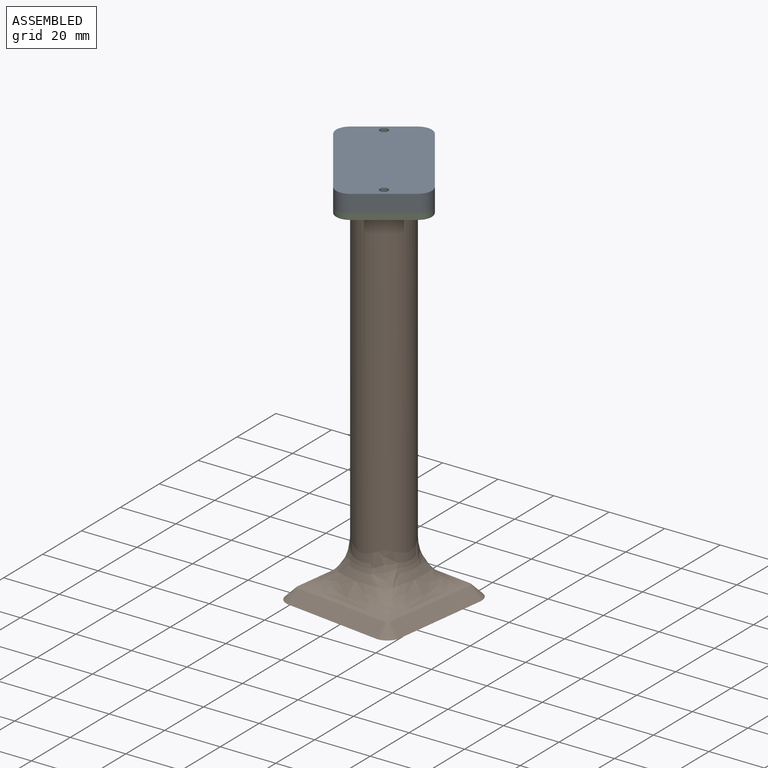
[diagram: assembled view]
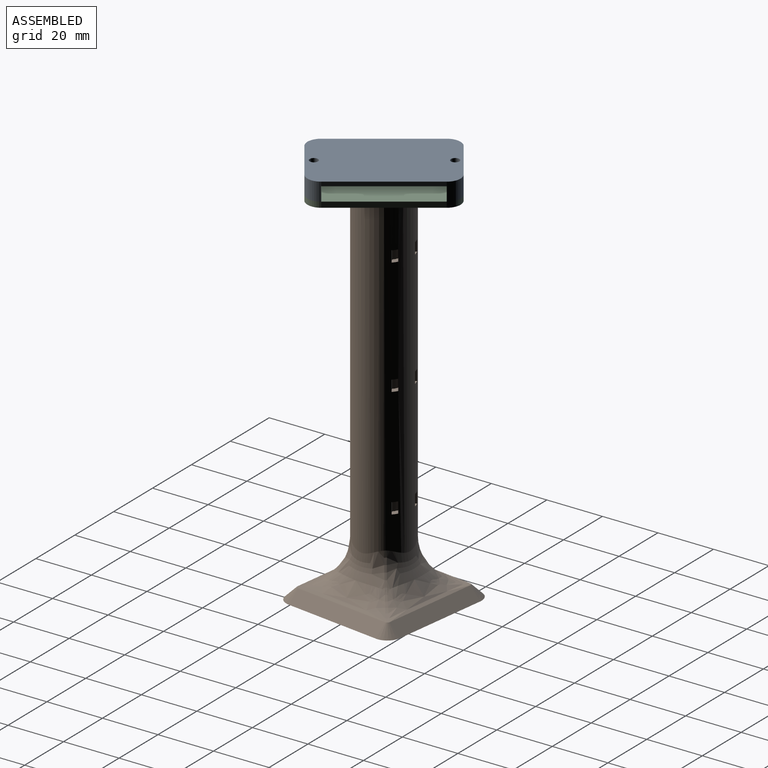
[diagram: assembled view, second angle]
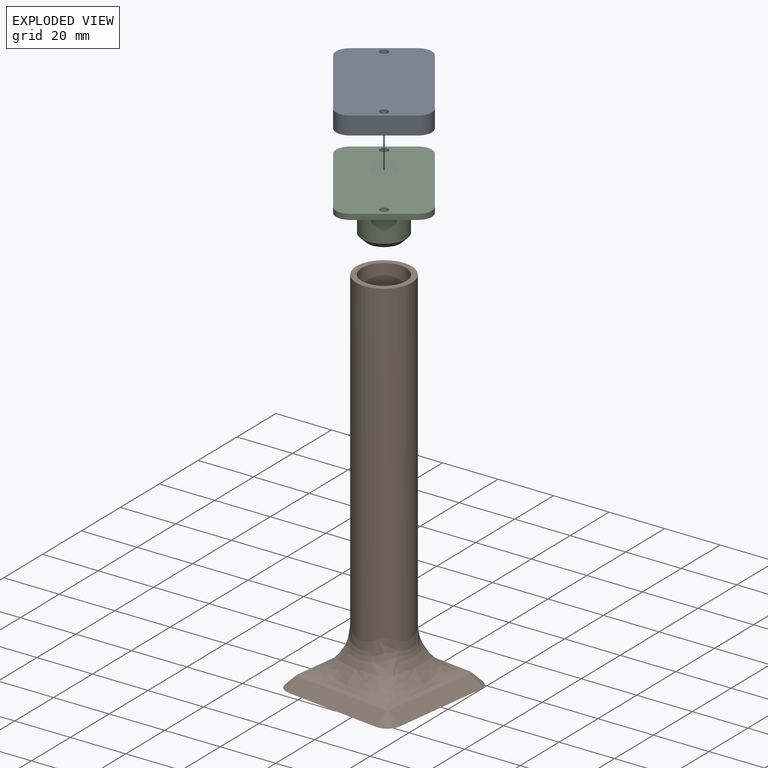
[diagram: exploded view]
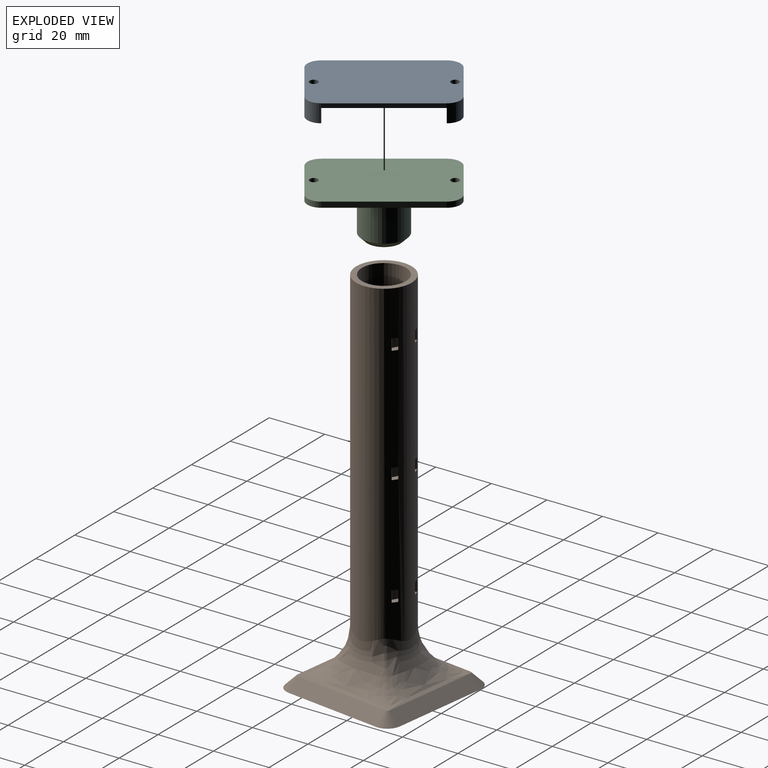
[diagram: exploded view, second angle]
ASSEMBLY  parts=3 mates=2
PART A: 16 faces, bbox 47x30x6.5 mm
  f0: plane 47x30mm, normal (0,0,1), area 1374.4mm2, adj f3,f4,f5,f7,f8,f9,f10,f11
  f1: plane 37x30mm, normal (0,0,-1), area 1110mm2, adj f2,f7,f11,f12
  f2: plane 30x5mm, normal (1,0,0), area 150mm2, adj f1,f3,f5,f6
  f3: cylinder r=5mm len=6.5mm, axis (0,0,-1), area 51.1mm2, adj f0,f2,f4,f6,f11
  f4: plane 20x6.5mm, normal (-1,0,0), area 130mm2, adj f0,f3,f5,f6
  f5: cylinder r=5mm len=6.5mm, axis (0,0,-1), area 51.1mm2, adj f0,f2,f4,f6,f7
  f6: plane 30x5mm, normal (0,0,-1), area 132.2mm2, adj f2,f3,f4,f5,f15
  f7: plane 37x1.5mm, normal (0,-1,0), area 55.5mm2, adj f0,f1,f5,f8
  f8: cylinder r=5mm len=6.5mm, axis (0,0,-1), area 51.1mm2, adj f0,f7,f9,f12,f13
  f9: plane 20x6.5mm, normal (1,0,0), area 130mm2, adj f0,f8,f10,f13
  f10: cylinder r=5mm len=6.5mm, axis (0,0,-1), area 51.1mm2, adj f0,f9,f11,f12,f13
  f11: plane 37x1.5mm, normal (0,1,0), area 55.5mm2, adj f0,f1,f3,f10
  f12: plane 30x5mm, normal (-1,0,0), area 150mm2, adj f1,f8,f10,f13
  f13: plane 30x5mm, normal (0,0,-1), area 132.2mm2, adj f8,f9,f10,f12,f14
  f14: cylinder r=1.5mm len=6.5mm, axis (0,0,1), area 61.3mm2, adj f0,f13
  f15: cylinder r=1.5mm len=6.5mm, axis (0,0,1), area 61.3mm2, adj f0,f6
PART B: 44 faces, bbox 46.3x46.3x135.3 mm
  f0: plane 45x45mm, normal (0,0,-1), area 1802.5mm2, adj f1,f4,f5,f6,f7,f8,f9,f10
  f1: cylinder r=8mm len=134mm, axis (0,0,-1), area 6657.8mm2, adj f0,f3,f20,f21,f22,f23,f24,f25
  f2: cylinder r=10mm len=115.81mm, axis (0,0,-1), area 7168.4mm2, adj f3,f12,f13,f14,f15,f16,f17,f18
  f3: plane 20x20mm, normal (0,0,1), area 113.1mm2, adj f1,f2
  f4: plane 36.28x5.28mm, normal (0.71,0,0.71), area 198mm2, adj f0,f5,f6,f12
  f5: cone r=5mm half-angle=45deg, axis (0,0,-1), area 26.7mm2, adj f0,f4,f7,f13
  f6: cone r=1mm half-angle=45deg, axis (0,0,-1), area 26.7mm2, adj f0,f4,f8,f14
  f7: plane 36.28x5.28mm, normal (0,0.71,0.71), area 198mm2, adj f0,f5,f9,f15
  f8: plane 36.28x5.28mm, normal (0,-0.71,0.71), area 198mm2, adj f0,f6,f10,f16
  f9: cone r=5mm half-angle=45deg, axis (0,0,-1), area 26.7mm2, adj f0,f7,f11,f17
  f10: cone r=1mm half-angle=45deg, axis (0,0,-1), area 26.7mm2, adj f0,f8,f11,f18
  f11: plane 36.28x5.28mm, normal (-0.71,0,0.71), area 198mm2, adj f0,f9,f10,f19
  f12: bspline ~36.85x16.11mm, area 414.7mm2, adj f2,f4,f13,f14
  f13: bspline ~16.1x11.93mm, area 21.2mm2, adj f2,f5,f12,f15
  f14: bspline ~16.1x11.93mm, area 21.2mm2, adj f2,f6,f12,f16
  f15: bspline ~36.85x16.11mm, area 414.7mm2, adj f2,f7,f13,f17
  f16: bspline ~36.85x16.11mm, area 414.7mm2, adj f2,f8,f14,f18
  f17: bspline ~16.1x11.93mm, area 21.2mm2, adj f2,f9,f15,f19
  f18: bspline ~16.1x11.93mm, area 21.2mm2, adj f2,f10,f16,f19
  f19: bspline ~36.85x16.11mm, area 414.7mm2, adj f2,f11,f17,f18
  f20: plane 4.64x2.31mm, normal (0,0,-1), area 4.8mm2, adj f1,f2,f22,f23
  f21: plane 4.64x2.31mm, normal (0,0,1), area 4.8mm2, adj f1,f2,f22,f23
  f22: cylinder r=7mm len=4mm, axis (0,0,-1), area 8.4mm2, adj f1,f2,f20,f21
  f23: cylinder r=5mm len=4mm, axis (0,0,-1), area 12.7mm2, adj f1,f2,f20,f21
  f24: cylinder r=5mm len=4mm, axis (0,0,-1), area 12.7mm2, adj f1,f2,f26,f27
  f25: cylinder r=7mm len=4mm, axis (0,0,-1), area 8.4mm2, adj f1,f2,f26,f27
  f26: plane 4.67x2.33mm, normal (0,0,-1), area 4.8mm2, adj f1,f2,f24,f25
  f27: plane 4.67x2.33mm, normal (0,0,1), area 4.8mm2, adj f1,f2,f24,f25
  f28: plane 4.64x2.31mm, normal (0,0,-1), area 4.8mm2, adj f1,f2,f30,f31
  f29: plane 4.64x2.31mm, normal (0,0,1), area 4.8mm2, adj f1,f2,f30,f31
  f30: cylinder r=7mm len=4mm, axis (0,0,-1), area 8.4mm2, adj f1,f2,f28,f29
  f31: cylinder r=5mm len=4mm, axis (0,0,-1), area 12.7mm2, adj f1,f2,f28,f29
  f32: cylinder r=5mm len=4mm, axis (0,0,-1), area 12.7mm2, adj f1,f2,f34,f35
  f33: cylinder r=7mm len=4mm, axis (0,0,-1), area 8.4mm2, adj f1,f2,f34,f35
  f34: plane 4.67x2.33mm, normal (0,0,-1), area 4.8mm2, adj f1,f2,f32,f33
  f35: plane 4.67x2.33mm, normal (0,0,1), area 4.8mm2, adj f1,f2,f32,f33
  f36: plane 4.64x2.31mm, normal (0,0,-1), area 4.8mm2, adj f1,f2,f38,f39
  f37: plane 4.64x2.31mm, normal (0,0,1), area 4.8mm2, adj f1,f2,f38,f39
  f38: cylinder r=7mm len=4mm, axis (0,0,-1), area 8.4mm2, adj f1,f2,f36,f37
  f39: cylinder r=5mm len=4mm, axis (0,0,-1), area 12.7mm2, adj f1,f2,f36,f37
  f40: cylinder r=5mm len=4mm, axis (0,0,-1), area 12.7mm2, adj f1,f2,f42,f43
  f41: cylinder r=7mm len=4mm, axis (0,0,-1), area 8.4mm2, adj f1,f2,f42,f43
  f42: plane 4.67x2.33mm, normal (0,0,-1), area 4.8mm2, adj f1,f2,f40,f41
  f43: plane 4.67x2.33mm, normal (0,0,1), area 4.8mm2, adj f1,f2,f40,f41
PART C: 16 faces, bbox 47x30x19 mm
  f0: plane 47x30mm, normal (0,0,-1), area 1173.3mm2, adj f2,f5,f6,f7,f8,f9,f10,f11
  f1: plane 47x30mm, normal (0,0,1), area 1374.4mm2, adj f5,f6,f7,f8,f9,f10,f11,f12
  f2: cylinder r=8mm len=16mm, axis (0,0,1), area 754mm2, adj f0,f3
  f3: cone r=8mm half-angle=45deg, axis (0,0,1), area 124.4mm2, adj f2,f4
  f4: cylinder r=6mm len=17mm, axis (0,0,1), area 640.9mm2, adj f3,f13
  f5: cylinder r=5mm len=5mm, axis (0,0,-1), area 15.7mm2, adj f0,f1,f6,f12
  f6: plane 20x2mm, normal (1,0,0), area 40mm2, adj f0,f1,f5,f7
  f7: cylinder r=5mm len=5mm, axis (0,0,-1), area 15.7mm2, adj f0,f1,f6,f8
  f8: plane 37x2mm, normal (0,-1,0), area 74mm2, adj f0,f1,f7,f9
  f9: cylinder r=5mm len=5mm, axis (0,0,-1), area 15.7mm2, adj f0,f1,f8,f10
  f10: plane 20x2mm, normal (-1,0,0), area 40mm2, adj f0,f1,f9,f11
  f11: cylinder r=5mm len=5mm, axis (0,0,-1), area 15.7mm2, adj f0,f1,f10,f12
  f12: plane 37x2mm, normal (0,1,0), area 74mm2, adj f0,f1,f5,f11
  f13: plane 12x12mm, normal (0,0,-1), area 113.1mm2, adj f4
  f14: cylinder r=1.5mm len=3mm, axis (0,0,1), area 18.8mm2, adj f0,f1
  f15: cylinder r=1.5mm len=3mm, axis (0,0,1), area 18.8mm2, adj f0,f1
PLACE A rot(axis=(0,0,-1),55deg) t=(58.25,58.17,-26.83)mm
PLACE B rot(axis=(0,0,-1),7.7deg) t=(58.25,58.17,-26.83)mm fixed
PLACE C rot(axis=(0,0,-1),55deg) t=(58.25,58.17,-26.83)mm
MATE fastened C.f14 <-> A.f15  axis (0,0,1) through (46.21,75.38,109.17)mm
MATE cylindrical B.f1 <-> C.f2  axis (0,0,1) through (58.25,58.17,107.17)mm
